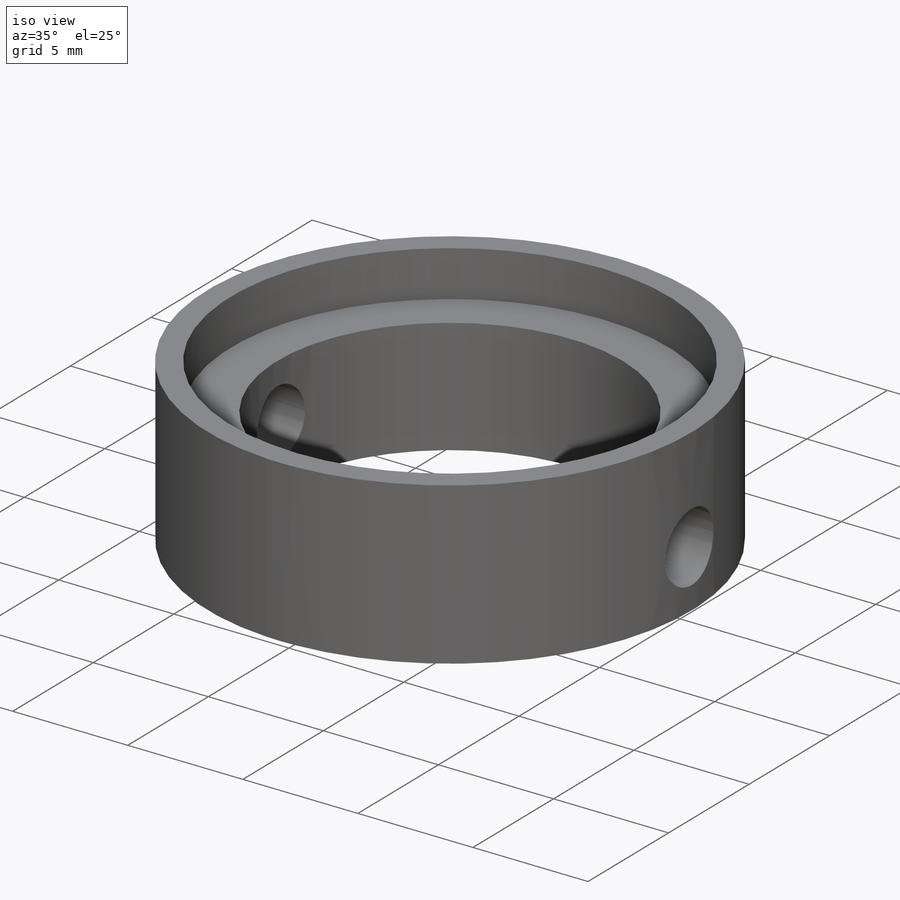
[diagram: iso view]
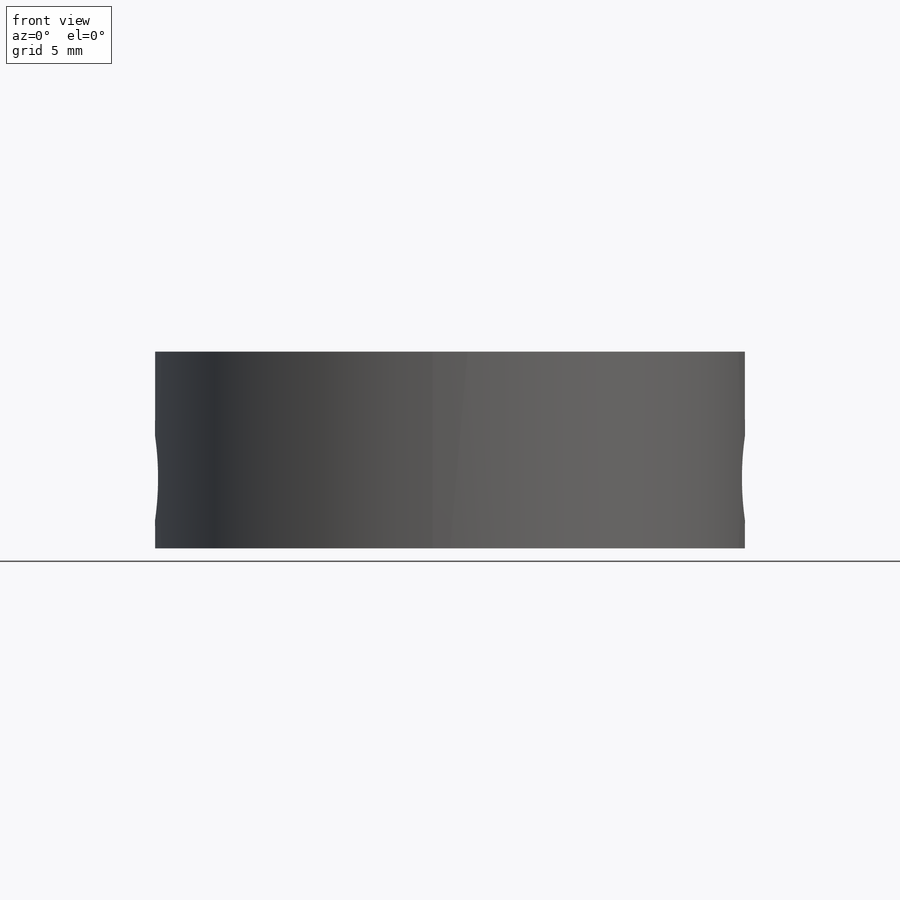
[diagram: front view]
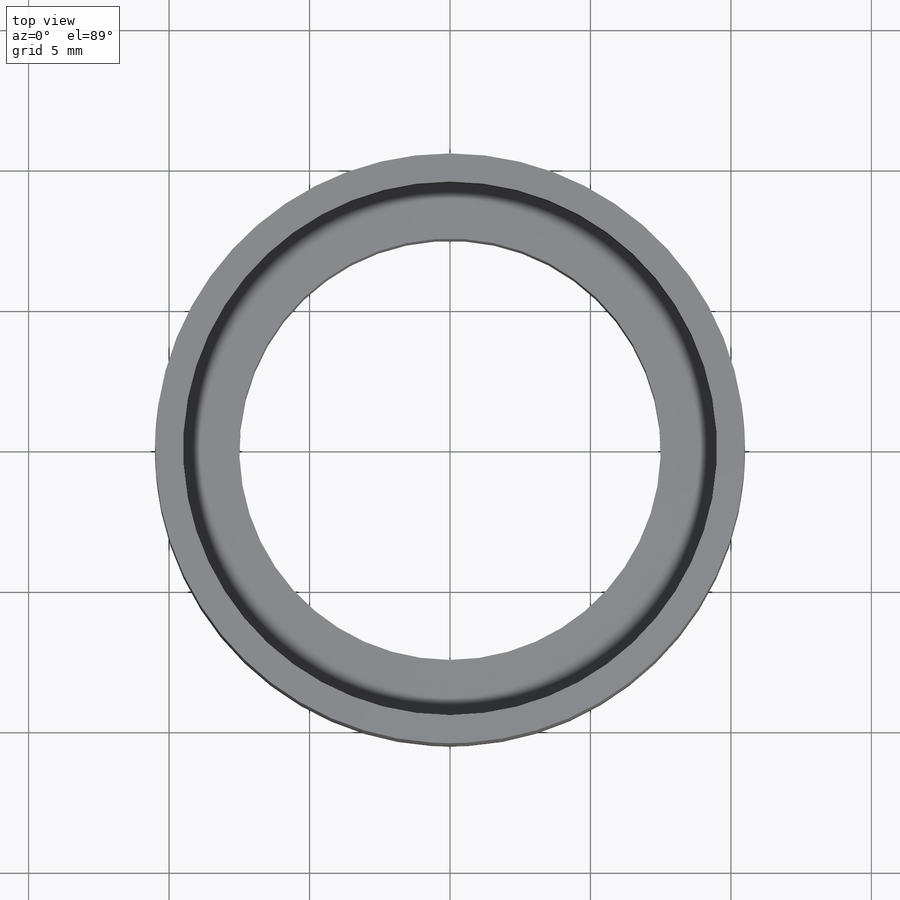
[diagram: top view]
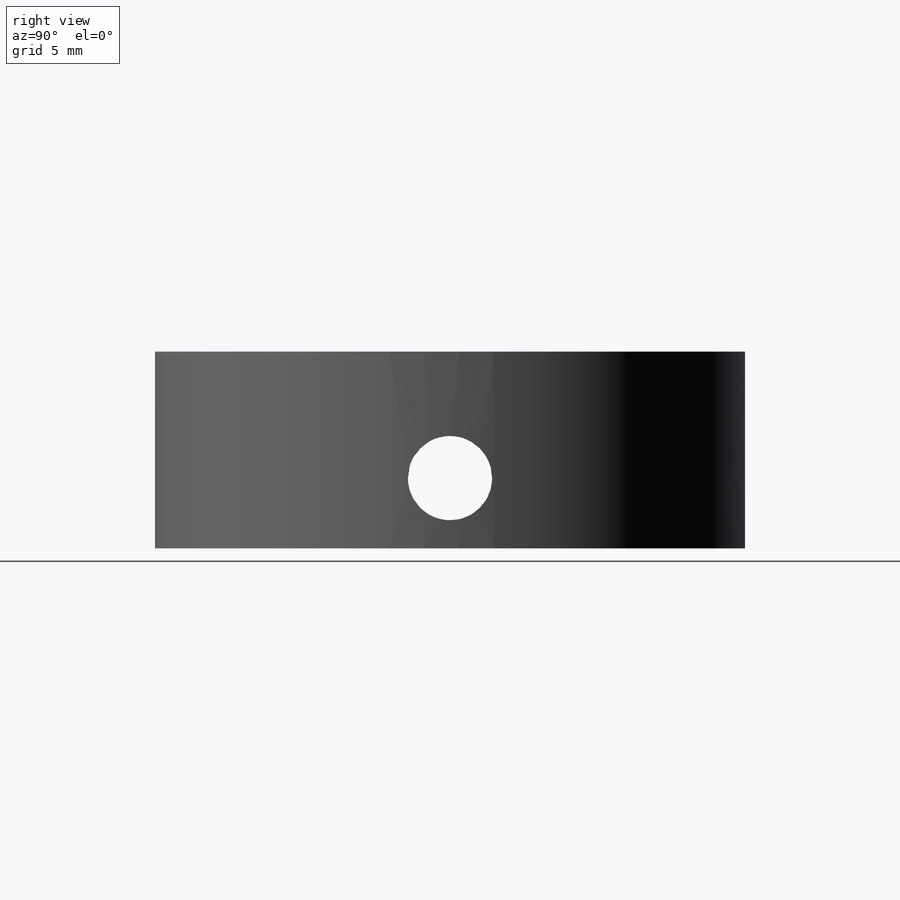
[diagram: right view]
SOLIDWORKS PART (.sldprt)
format: sldprt  version: not decoded by parser v0  size: 186,880 bytes
history: native  units: mm
features: sketch x6, cut_extrude x4, plane x3, material x1, extrude x1 (+8 scaffold rows collapsed)
feature tree (23):
  scaffold x8  (default folders/planes/origin — collapsed)
  material  "Materiale <non specificato>"
  plane  "Piano frontale"
  plane  "Piano superiore"
  plane  "Piano destro"
  sketch  "Schizzo1"  dims[D1=21.0mm]
  extrude  "Estrusione-Estrusione1"  Depth=7mm
  sketch  "Schizzo2"  dims[D1=19.0mm]
  cut_extrude  "Taglio-Estrusione1"  Depth=2mm
  sketch  "Schizzo3"  dims[D1=15.0mm]
  cut_extrude  "Taglio-Estrusione2"  [1 undecoded]
  sketch  "Schizzo4"  dims[D1=3.0mm D2=2.5mm]
  cut_extrude  "Taglio-Estrusione3"  [1 undecoded]
  sketch  "Schizzo5"
  sketch  "Schizzo6"
  cut_extrude  "Taglio-Estrusione4"  Depth=0.3mm
decode coverage: 7 of 11 modeling features carry decoded parameters
note: 2 parameter values undecoded
note: suppression state not decoded; provenance and decode notes live in map.json
